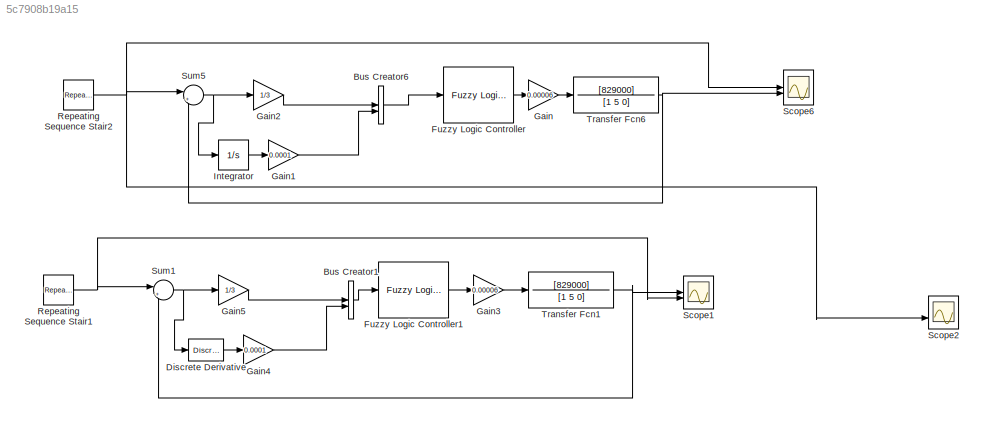
MODEL slx_5c7908b19a15
KIND model
CONFIG AbsTol = auto
CONFIG EnableMultiTasking = off
CONFIG FixedStep = auto
CONFIG MaxStep = auto
CONFIG MinStep = auto
CONFIG RelTol = 1e-3
CONFIG SampleTimeConstraint = Unconstrained
CONFIG SolverName = VariableStepAuto
CONFIG StartTime = 0.0
CONFIG StopTime = 25.0
BLOCK [BusCreator] Bus Creator1
  DisplayOption = bar
  InheritFromInputs = on
  Inputs = 2
BLOCK [BusCreator] Bus Creator6
  DisplayOption = bar
  InheritFromInputs = on
  Inputs = 2
BLOCK [Reference] Discrete Derivative  REF=simulink/Discrete/Discrete Derivative
  SourceBlock = simulink/Discrete/Discrete Derivative
  SourceType = Discrete Derivative
BLOCK [Reference] Fuzzy Logic Controller  REF=fuzblock/Fuzzy Logic   (lib defined in mdl_858b3b3e7478)
Controller
  SourceBlock = fuzblock/Fuzzy Logic \nController
  SourceType = Fuzzy Inference System
BLOCK [Reference] Fuzzy Logic Controller1  REF=fuzblock/Fuzzy Logic   (lib defined in mdl_858b3b3e7478)
Controller
  SourceBlock = fuzblock/Fuzzy Logic \nController
  SourceType = Fuzzy Inference System
BLOCK [Gain] Gain
  Gain = 0.00006
BLOCK [Gain] Gain1
  Gain = 0.0001
BLOCK [Gain] Gain2
  Gain = 1/3
BLOCK [Gain] Gain3
  Gain = 0.00006
BLOCK [Gain] Gain4
  Gain = 0.0001
BLOCK [Gain] Gain5
  Gain = 1/3
BLOCK [Integrator] Integrator
BLOCK [Reference] Repeating Sequence Stair1  REF=simulink/Sources/Repeating
Sequence
Stair
  SourceBlock = simulink/Sources/Repeating\nSequence\nStair
  SourceType = Repeating Sequence Stair
BLOCK [Reference] Repeating Sequence Stair2  REF=simulink/Sources/Repeating
Sequence
Stair
  SourceBlock = simulink/Sources/Repeating\nSequence\nStair
  SourceType = Repeating Sequence Stair
BLOCK [Scope] Scope1
  Floating = off
  NumInputPorts = 2
  ScopeSpecificationString = Simulink.scopes.TimeScopeBlockCfg('CurrentConfiguration', extmgr.ConfigurationSet(extmgr.Configuration('Core','General UI',true),extmgr.Configuration('Core','Source UI',true),extmgr.Configuration('Sources','WiredSimulink',true,'DataLoggingVariableName','ScopeData1'),extmgr.Configuration('Visuals','Time Domain',true,'SerializedDisplays',{struct('MinYLimReal','-3.77728','MaxYLimReal','33.9955','YLab...<+1636ch>
BLOCK [Scope] Scope2
  Floating = off
  NumInputPorts = 2
  ScopeSpecificationString = Simulink.scopes.TimeScopeBlockCfg('CurrentConfiguration', extmgr.ConfigurationSet(extmgr.Configuration('Core','General UI',true),extmgr.Configuration('Core','Source UI',true),extmgr.Configuration('Sources','WiredSimulink',true,'DataLoggingVariableName','ScopeData1'),extmgr.Configuration('Visuals','Time Domain',true,'SerializedDisplays',{struct('MinYLimReal','-2.5','MaxYLimReal','22.5','YLabelReal'...<+1599ch>
BLOCK [Scope] Scope6
  Floating = off
  NumInputPorts = 2
  ScopeSpecificationString = Simulink.scopes.TimeScopeBlockCfg('CurrentConfiguration', extmgr.ConfigurationSet(extmgr.Configuration('Core','General UI',true),extmgr.Configuration('Core','Source UI',true),extmgr.Configuration('Sources','WiredSimulink',true,'DataLoggingVariableName','ScopeData4'),extmgr.Configuration('Visuals','Time Domain',true,'SerializedDisplays',{struct('MinYLimReal','-3.77748','MaxYLimReal','33.99734','YLa...<+1665ch>
BLOCK [Sum] Sum1
  Inputs = |+-
BLOCK [Sum] Sum5
  Inputs = |+-
BLOCK [TransferFcn] Transfer Fcn1
  Denominator = [1 5 0]
  Numerator = [829000]
BLOCK [TransferFcn] Transfer Fcn6
  Denominator = [1 5 0]
  Numerator = [829000]
LINE Bus Creator1:1 -> Fuzzy Logic Controller1:1
LINE Bus Creator6:1 -> Fuzzy Logic Controller:1
LINE Discrete Derivative:1 -> Gain4:1
LINE Fuzzy Logic Controller1:1 -> Gain3:1
LINE Fuzzy Logic Controller:1 -> Gain:1
LINE Gain1:1 -> Bus Creator6:2
LINE Gain2:1 -> Bus Creator6:1
LINE Gain3:1 -> Transfer Fcn1:1
LINE Gain4:1 -> Bus Creator1:2
LINE Gain5:1 -> Bus Creator1:1
LINE Gain:1 -> Transfer Fcn6:1
LINE Integrator:1 -> Gain1:1
NET Repeating Sequence Stair1:1 -> Scope1:2, Sum1:1
NET Repeating Sequence Stair2:1 -> Scope2:2, Scope6:1, Sum5:1
NET Sum1:1 -> Discrete Derivative:1, Gain5:1
NET Sum5:1 -> Gain2:1, Integrator:1
NET Transfer Fcn1:1 -> Scope1:1, Sum1:2
NET Transfer Fcn6:1 -> Scope6:2, Sum5:2
note: NET lines group one-source signal fan-out (src -> all destinations, sorted); 1:1 wires keep LINE
